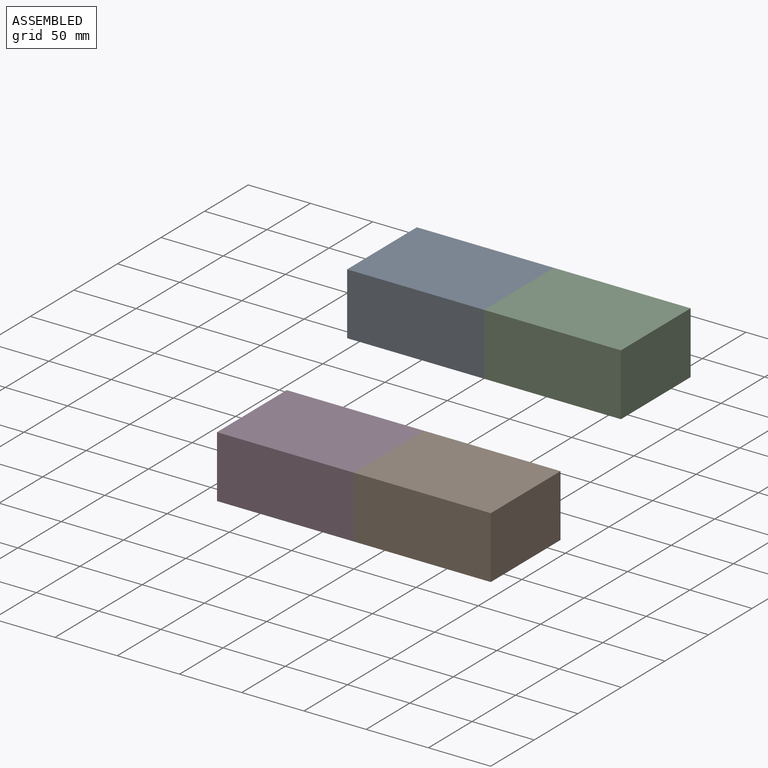
[diagram: assembled view]
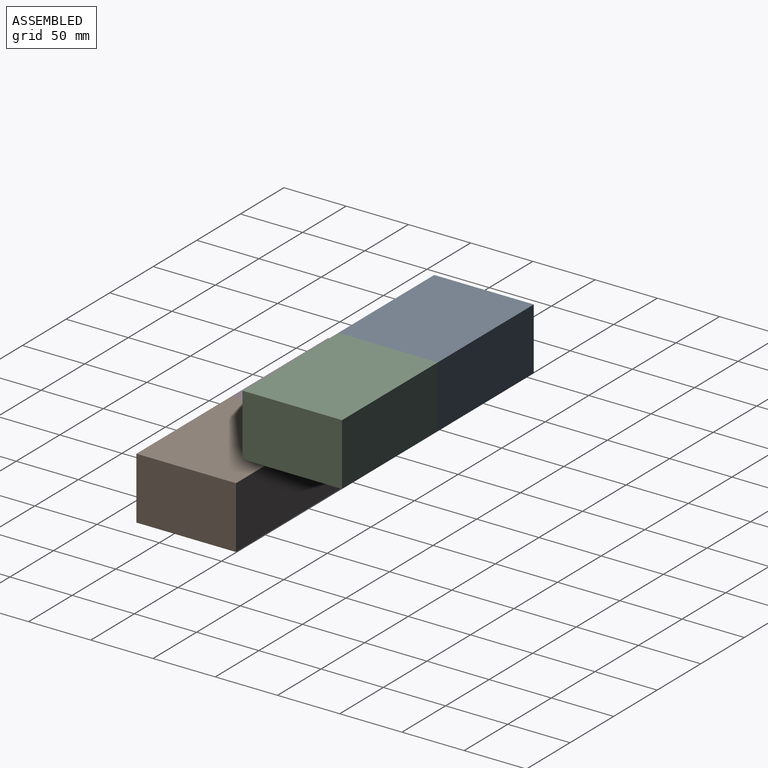
[diagram: assembled view, second angle]
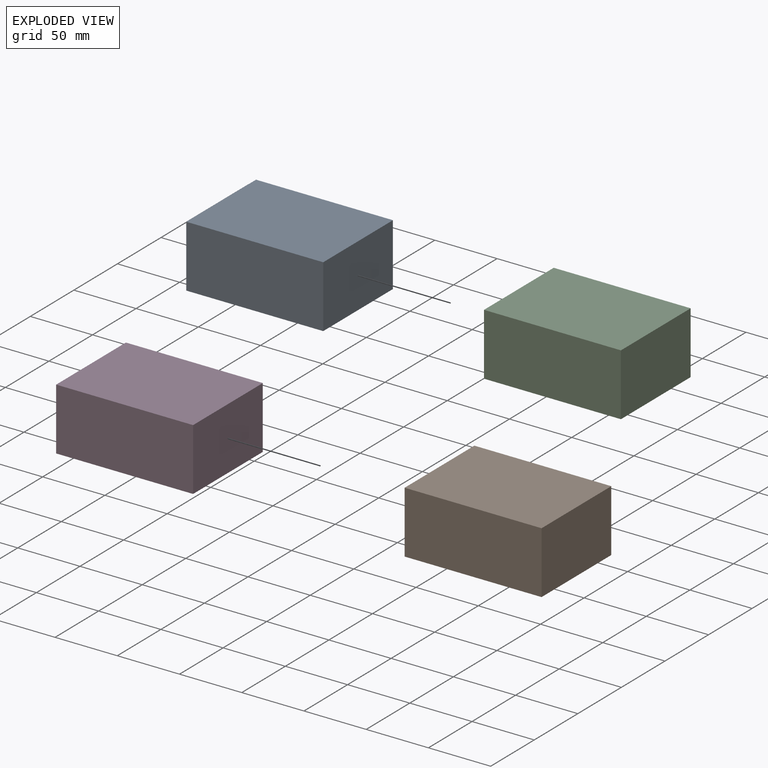
[diagram: exploded view]
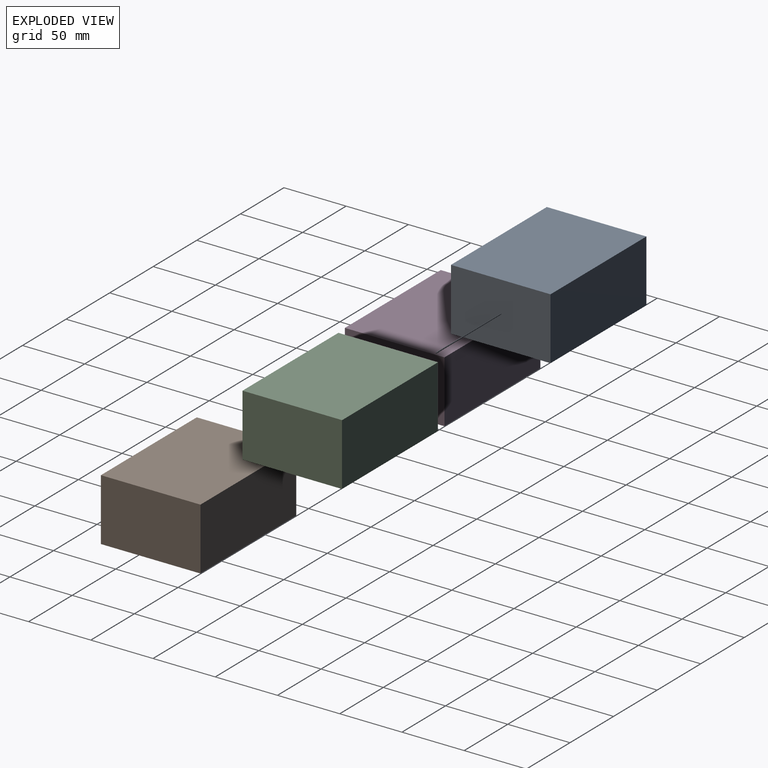
[diagram: exploded view, second angle]
ASSEMBLY  parts=4 mates=2
PART A: 6 faces, bbox 110x80x50 mm
  f0: plane 80x50mm, normal (1,0,0), area 4000mm2, adj f1,f3,f4,f5
  f1: plane 110x50mm, normal (0,1,0), area 5500mm2, adj f0,f2,f4,f5
  f2: plane 80x50mm, normal (-1,0,0), area 4000mm2, adj f1,f3,f4,f5
  f3: plane 110x50mm, normal (0,-1,0), area 5500mm2, adj f0,f2,f4,f5
  f4: plane 110x80mm, normal (0,0,1), area 8800mm2, adj f0,f1,f2,f3
  f5: plane 110x80mm, normal (0,0,-1), area 8800mm2, adj f0,f1,f2,f3
PART B: same geometry as A
PART C: same geometry as A
PART D: same geometry as A
PLACE A t=(57.01,72.28,40.3)mm
PLACE B t=(136.89,-34.02,-45.42)mm
PLACE C t=(167.01,72.28,40.3)mm
PLACE D t=(26.89,-34.02,-45.42)mm fixed
MATE fastened D.f0 <-> B.f2  axis (1,0,0) through (81.89,-34.02,-45.42)mm
MATE fastened A.f0 <-> C.f2  axis (1,0,0) through (112.01,72.28,40.3)mm
